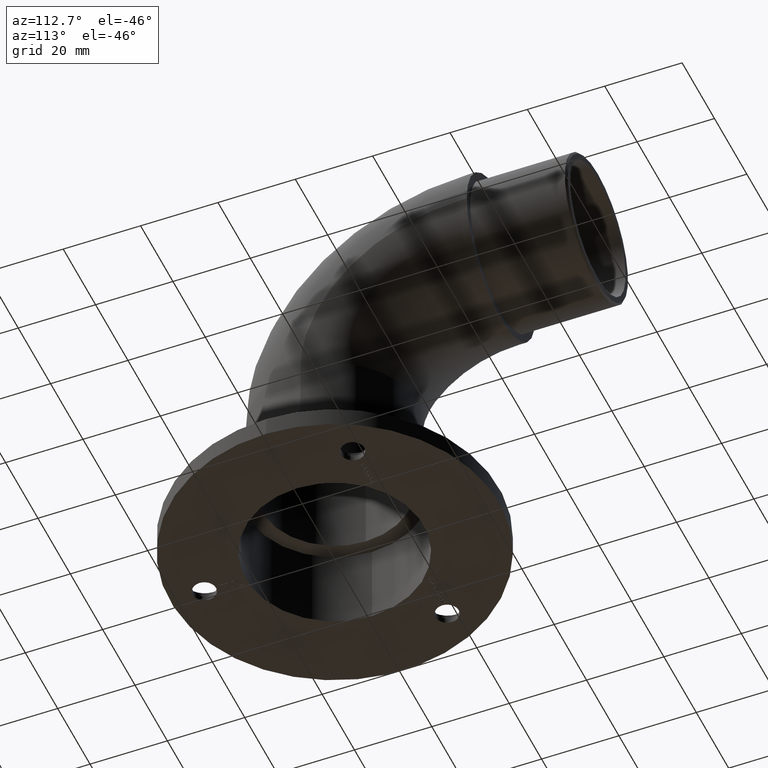
[diagram: clean part render]
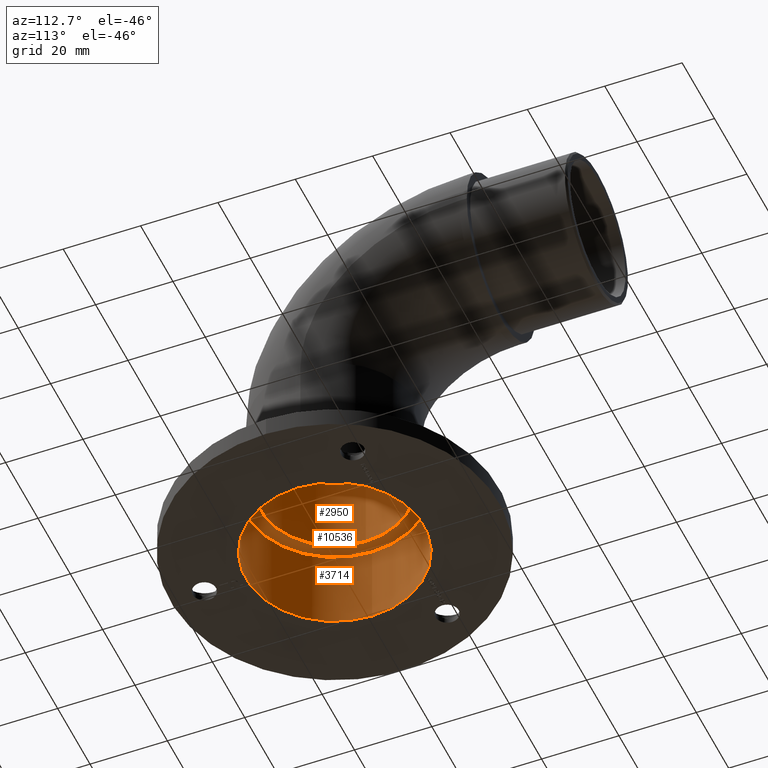
[diagram: same view with one multi-face feature highlighted, each face labeled with its STEP entity id]
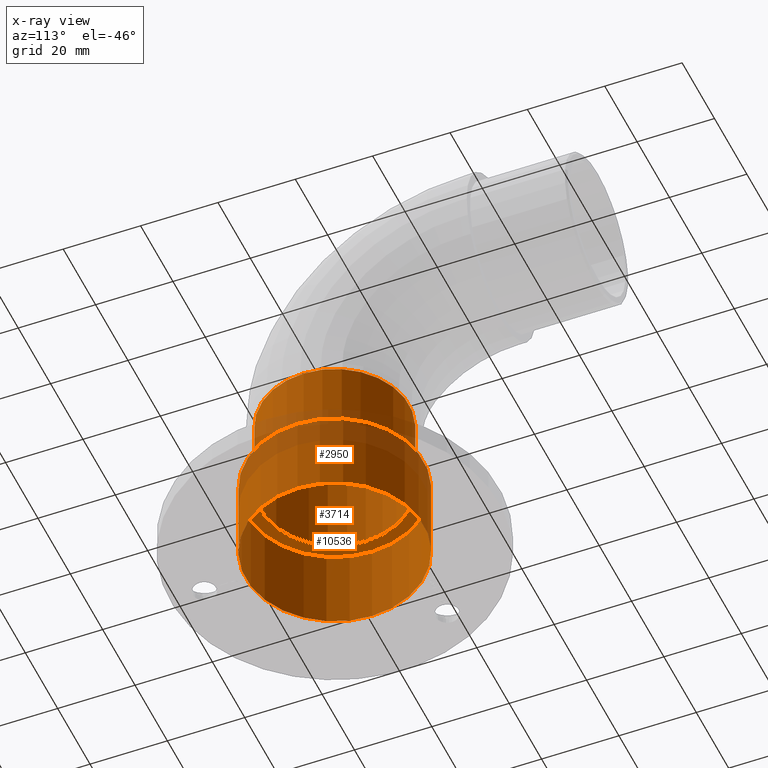
[diagram: x-ray of the same camera — body ghosted, the whole feature saturated]
A machine part, auxiliary view. The highlighted faces form ONE feature: a stepped (counterbored) hole: 2 coaxial cylindrical walls of radii 19.2 -> 23 mm joined by 1 annular planar shoulder face(s). The faces share edges in the B-rep.
The next image is the same camera in x-ray: the body ghosted and the whole hole feature saturated, so the bore chain is visible through the body.
Their STEP definitions:
[1] entity #3714 (Cylinder):
#732 = AXIS2_PLACEMENT_3D ( 'NONE', #5209, #8997, #1664 ) ;
#1664 = DIRECTION ( 'NONE',  ( 1.000000000000000000, 0.000000000000000000, 0.000000000000000000 ) ) ;
#1776 = EDGE_CURVE ( 'NONE', #7900, #7900, #14440, .T. ) ;
#2324 = AXIS2_PLACEMENT_3D ( 'NONE', #5713, #6660, #15100 ) ;
#3714 = ADVANCED_FACE ( 'NONE', ( #14419, #4819 ), #8564, .F. ) ;
#3994 = AXIS2_PLACEMENT_3D ( 'NONE', #4647, #9533, #8371 ) ;
#4647 = CARTESIAN_POINT ( 'NONE',  ( 0.000000000000000000, 0.000000000000000000, 0.000000000000000000 ) ) ;
#4819 = FACE_OUTER_BOUND ( 'NONE', #12332, .T. ) ;
#5155 = CARTESIAN_POINT ( 'NONE',  ( -23.00000000000000355, 0.000000000000000000, 0.000000000000000000 ) ) ;
#5209 = CARTESIAN_POINT ( 'NONE',  ( 0.000000000000000000, 0.000000000000000000, 21.99999999999999289 ) ) ;
#5589 = ORIENTED_EDGE ( 'NONE', *, *, #1776, .F. ) ;
#5713 = CARTESIAN_POINT ( 'NONE',  ( 0.000000000000000000, 0.000000000000000000, 89.05382386916238602 ) ) ;
#6660 = DIRECTION ( 'NONE',  ( -0.000000000000000000, -0.000000000000000000, -1.000000000000000000 ) ) ;
#7900 = VERTEX_POINT ( 'NONE', #13563 ) ;
#8371 = DIRECTION ( 'NONE',  ( -1.000000000000000000, 0.000000000000000000, 0.000000000000000000 ) ) ;
#8564 = CYLINDRICAL_SURFACE ( 'NONE', #2324, 23.00000000000000355 ) ;
#8997 = DIRECTION ( 'NONE',  ( -0.000000000000000000, -0.000000000000000000, -1.000000000000000000 ) ) ;
#9533 = DIRECTION ( 'NONE',  ( 0.000000000000000000, 0.000000000000000000, -1.000000000000000000 ) ) ;
#10567 = VERTEX_POINT ( 'NONE', #5155 ) ;
#11116 = CIRCLE ( 'NONE', #3994, 23.00000000000000355 ) ;
#12330 = EDGE_LOOP ( 'NONE', ( #13229 ) ) ;
#12332 = EDGE_LOOP ( 'NONE', ( #5589 ) ) ;
#13229 = ORIENTED_EDGE ( 'NONE', *, *, #15536, .T. ) ;
#13563 = CARTESIAN_POINT ( 'NONE',  ( 23.00000000000000355, 0.000000000000000000, 21.99999999999999289 ) ) ;
#14419 = FACE_OUTER_BOUND ( 'NONE', #12330, .T. ) ;
#14440 = CIRCLE ( 'NONE', #732, 23.00000000000000355 ) ;
#15100 = DIRECTION ( 'NONE',  ( -1.000000000000000000, 0.000000000000000000, 0.000000000000000000 ) ) ;
#15536 = EDGE_CURVE ( 'NONE', #10567, #10567, #11116, .T. ) ;
[2] entity #2950 (Cylinder):
#348 = EDGE_CURVE ( 'NONE', #2425, #2425, #2272, .T. ) ;
#525 = CARTESIAN_POINT ( 'NONE',  ( 0.000000000000000000, 2.877102350400557656E-15, 43.00000000000000711 ) ) ;
#759 = AXIS2_PLACEMENT_3D ( 'NONE', #525, #12500, #11342 ) ;
#1444 = CARTESIAN_POINT ( 'NONE',  ( -19.20000000000000284, 0.000000000000000000, 22.00000000000000000 ) ) ;
#1467 = VERTEX_POINT ( 'NONE', #11266 ) ;
#1624 = AXIS2_PLACEMENT_3D ( 'NONE', #6840, #11678, #3405 ) ;
#2272 = CIRCLE ( 'NONE', #1624, 19.20000000000000284 ) ;
#2348 = AXIS2_PLACEMENT_3D ( 'NONE', #9086, #11350, #6508 ) ;
#2425 = VERTEX_POINT ( 'NONE', #1444 ) ;
#2950 = ADVANCED_FACE ( 'NONE', ( #10673, #5951 ), #6137, .F. ) ;
#3405 = DIRECTION ( 'NONE',  ( -1.000000000000000000, 0.000000000000000000, 0.000000000000000000 ) ) ;
#3528 = EDGE_LOOP ( 'NONE', ( #13755 ) ) ;
#5951 = FACE_OUTER_BOUND ( 'NONE', #3528, .T. ) ;
#6137 = CYLINDRICAL_SURFACE ( 'NONE', #2348, 19.20000000000000284 ) ;
#6508 = DIRECTION ( 'NONE',  ( -1.000000000000000000, 0.000000000000000000, 0.000000000000000000 ) ) ;
#6840 = CARTESIAN_POINT ( 'NONE',  ( 0.000000000000000000, 0.000000000000000000, 22.00000000000000000 ) ) ;
#7868 = ORIENTED_EDGE ( 'NONE', *, *, #14663, .F. ) ;
#9086 = CARTESIAN_POINT ( 'NONE',  ( 0.000000000000000000, 0.000000000000000000, 43.00000000000000711 ) ) ;
#10673 = FACE_OUTER_BOUND ( 'NONE', #15684, .T. ) ;
#11266 = CARTESIAN_POINT ( 'NONE',  ( 19.20000000000000284, 2.877102350400557656E-15, 43.00000000000000711 ) ) ;
#11342 = DIRECTION ( 'NONE',  ( 1.000000000000000000, 0.000000000000000000, 0.000000000000000000 ) ) ;
#11350 = DIRECTION ( 'NONE',  ( 0.000000000000000000, 0.000000000000000000, -1.000000000000000000 ) ) ;
#11678 = DIRECTION ( 'NONE',  ( 0.000000000000000000, 0.000000000000000000, -1.000000000000000000 ) ) ;
#12500 = DIRECTION ( 'NONE',  ( -0.000000000000000000, -0.000000000000000000, -1.000000000000000000 ) ) ;
#13700 = CIRCLE ( 'NONE', #759, 19.20000000000000284 ) ;
#13755 = ORIENTED_EDGE ( 'NONE', *, *, #348, .T. ) ;
#14663 = EDGE_CURVE ( 'NONE', #1467, #1467, #13700, .T. ) ;
#15684 = EDGE_LOOP ( 'NONE', ( #7868 ) ) ;
[3] entity #10536 (Plane):
#348 = EDGE_CURVE ( 'NONE', #2425, #2425, #2272, .T. ) ;
#732 = AXIS2_PLACEMENT_3D ( 'NONE', #5209, #8997, #1664 ) ;
#1444 = CARTESIAN_POINT ( 'NONE',  ( -19.20000000000000284, 0.000000000000000000, 22.00000000000000000 ) ) ;
#1624 = AXIS2_PLACEMENT_3D ( 'NONE', #6840, #11678, #3405 ) ;
#1664 = DIRECTION ( 'NONE',  ( 1.000000000000000000, 0.000000000000000000, 0.000000000000000000 ) ) ;
#1776 = EDGE_CURVE ( 'NONE', #7900, #7900, #14440, .T. ) ;
#2188 = EDGE_LOOP ( 'NONE', ( #13054 ) ) ;
#2272 = CIRCLE ( 'NONE', #1624, 19.20000000000000284 ) ;
#2425 = VERTEX_POINT ( 'NONE', #1444 ) ;
#3039 = FACE_BOUND ( 'NONE', #6115, .T. ) ;
#3235 = CARTESIAN_POINT ( 'NONE',  ( 0.000000000000000000, 0.000000000000000000, 22.00000000000000000 ) ) ;
#3405 = DIRECTION ( 'NONE',  ( -1.000000000000000000, 0.000000000000000000, 0.000000000000000000 ) ) ;
#5209 = CARTESIAN_POINT ( 'NONE',  ( 0.000000000000000000, 0.000000000000000000, 21.99999999999999289 ) ) ;
#6115 = EDGE_LOOP ( 'NONE', ( #8705 ) ) ;
#6840 = CARTESIAN_POINT ( 'NONE',  ( 0.000000000000000000, 0.000000000000000000, 22.00000000000000000 ) ) ;
#7900 = VERTEX_POINT ( 'NONE', #13563 ) ;
#8676 = FACE_OUTER_BOUND ( 'NONE', #2188, .T. ) ;
#8705 = ORIENTED_EDGE ( 'NONE', *, *, #348, .F. ) ;
#8997 = DIRECTION ( 'NONE',  ( -0.000000000000000000, -0.000000000000000000, -1.000000000000000000 ) ) ;
#9234 = DIRECTION ( 'NONE',  ( 1.000000000000000000, 0.000000000000000000, -0.000000000000000000 ) ) ;
#9705 = AXIS2_PLACEMENT_3D ( 'NONE', #3235, #10349, #9234 ) ;
#10349 = DIRECTION ( 'NONE',  ( 0.000000000000000000, 0.000000000000000000, 1.000000000000000000 ) ) ;
#10536 = ADVANCED_FACE ( 'NONE', ( #3039, #8676 ), #14023, .F. ) ;
#11678 = DIRECTION ( 'NONE',  ( 0.000000000000000000, 0.000000000000000000, -1.000000000000000000 ) ) ;
#13054 = ORIENTED_EDGE ( 'NONE', *, *, #1776, .T. ) ;
#13563 = CARTESIAN_POINT ( 'NONE',  ( 23.00000000000000355, 0.000000000000000000, 21.99999999999999289 ) ) ;
#14023 = PLANE ( 'NONE',  #9705 ) ;
#14440 = CIRCLE ( 'NONE', #732, 23.00000000000000355 ) ;